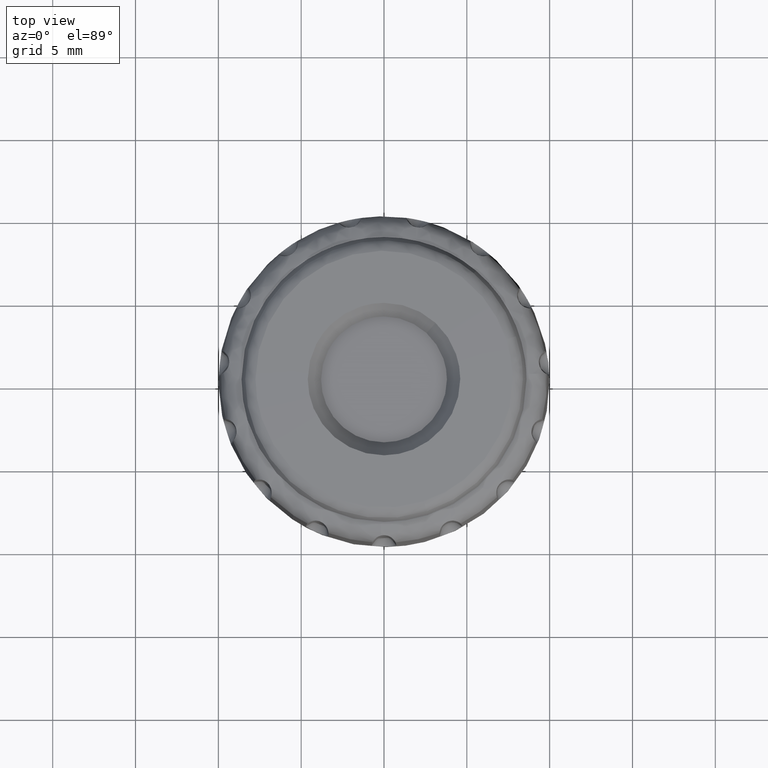
[diagram: clean part render]
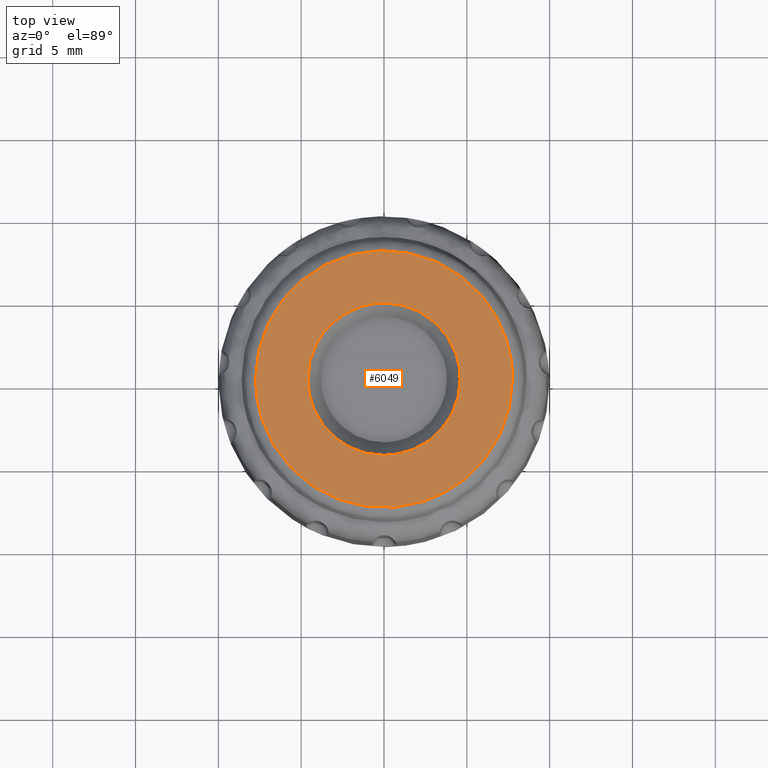
[diagram: same view with one face highlighted and labeled with its STEP entity id]
A machine part, top view. The second image highlights one B-rep face of the part: STEP entity #6049.
In plain terms, the highlighted face is a freeform B-spline surface patch.
Its self-contained STEP definition (entity closure, byte-faithful):
#1010=CARTESIAN_POINT('',(-3.210385367761054,3.298853250387907,13.947016409935310));
#1011=VERTEX_POINT('',#1010);
#1017=CARTESIAN_POINT('',(-4.603152000000000,0.0,13.947016462083660));
#1018=VERTEX_POINT('',#1017);
#1019=CARTESIAN_POINT('',(-4.603152000000000,0.0,13.947016462083660));
#1020=CARTESIAN_POINT('',(-4.603166727809455,0.239445156651411,13.947016458298499));
#1021=CARTESIAN_POINT('',(-4.566451554250141,0.708752306147743,13.947016450879721));
#1022=CARTESIAN_POINT('',(-4.410355716825743,1.372578302354811,13.947016440385870));
#1023=CARTESIAN_POINT('',(-4.150467701999781,2.033767404719485,13.947016429933861));
#1024=CARTESIAN_POINT('',(-3.766114687908772,2.688874956099022,13.947016419577780));
#1025=CARTESIAN_POINT('',(-3.409457181581394,3.105154564600973,13.947016412997399));
#1026=CARTESIAN_POINT('',(-3.210385367761054,3.298853250387907,13.947016409935310));
#1027=B_SPLINE_CURVE_WITH_KNOTS('',3,(#1019,#1020,#1021,#1022,#1023,#1024,#1025,#1026),.UNSPECIFIED.,.F.,.U.,(4,1,1,1,1,4),(5.679009E-009,0.718333817151312,1.407938819376223,2.040068226054926,2.844604052697239,3.677871206022464),.UNSPECIFIED.);
#1028=EDGE_CURVE('',#1018,#1011,#1027,.T.);
#1030=CARTESIAN_POINT('',(-0.000000444124098,-4.603151999999978,13.947016462083660));
#1031=VERTEX_POINT('',#1030);
#1032=CARTESIAN_POINT('',(-0.000000444124098,-4.603151999999978,13.947016462083660));
#1033=CARTESIAN_POINT('',(-0.254202597566716,-4.603173581576821,13.947016462083750));
#1034=CARTESIAN_POINT('',(-0.715522611148789,-4.564835705601952,13.947016462083530));
#1035=CARTESIAN_POINT('',(-1.339830481372016,-4.416575315006530,13.947016462083720));
#1036=CARTESIAN_POINT('',(-1.869616692293019,-4.217786647472836,13.947016462083580));
#1037=CARTESIAN_POINT('',(-2.431396191833623,-3.928530622547151,13.947016462083701));
#1038=CARTESIAN_POINT('',(-2.961134472995838,-3.548092882794495,13.947016462083640));
#1039=CARTESIAN_POINT('',(-3.479519271858484,-3.039161871774113,13.947016462083679));
#1040=CARTESIAN_POINT('',(-3.844141191005947,-2.556864754480110,13.947016462083660));
#1041=CARTESIAN_POINT('',(-4.155430947470489,-2.007347551485315,13.947016462083660));
#1042=CARTESIAN_POINT('',(-4.404732630682498,-1.405548117046053,13.947016462083660));
#1043=CARTESIAN_POINT('',(-4.568558268912137,-0.706113719199211,13.947016462083660));
#1044=CARTESIAN_POINT('',(-4.603159154176039,-0.216540528569821,13.947016462083660));
#1045=CARTESIAN_POINT('',(-4.603152000000000,0.0,13.947016462083660));
#1046=B_SPLINE_CURVE_WITH_KNOTS('',3,(#1032,#1033,#1034,#1035,#1036,#1037,#1038,#1039,#1040,#1041,#1042,#1043,#1044,#1045),.UNSPECIFIED.,.F.,.U.,(4,1,1,1,1,1,1,1,1,1,1,4),(0.000000020274494,0.762603145560284,1.383984655805973,1.920635275513180,2.457287706211696,3.276379536137069,3.869508029962641,4.632113521285097,5.084031152569250,5.761906877036174,6.581002372771326,7.230625345698268),.UNSPECIFIED.);
#1047=EDGE_CURVE('',#1031,#1018,#1046,.T.);
#1049=CARTESIAN_POINT('',(4.603152000000000,0.0,13.947016462083660));
#1050=VERTEX_POINT('',#1049);
#1051=CARTESIAN_POINT('',(4.603152000000000,0.0,13.947016462083660));
#1052=CARTESIAN_POINT('',(4.603157119736666,-0.225953175431454,13.947016462083660));
#1053=CARTESIAN_POINT('',(4.565667148986346,-0.734359596999381,13.947016462083701));
#1054=CARTESIAN_POINT('',(4.402074732746471,-1.404888006374486,13.947016462083591));
#1055=CARTESIAN_POINT('',(4.151283117009728,-2.015564264798307,13.947016462083720));
#1056=CARTESIAN_POINT('',(3.818320184317451,-2.607651494552200,13.947016462083560));
#1057=CARTESIAN_POINT('',(3.398605533307322,-3.132038634035441,13.947016462083671));
#1058=CARTESIAN_POINT('',(2.849737509335953,-3.635666320286818,13.947016462083660));
#1059=CARTESIAN_POINT('',(2.310817859570403,-4.002982295608224,13.947016462083800));
#1060=CARTESIAN_POINT('',(1.662500989240533,-4.309603846645066,13.947016462083459));
#1061=CARTESIAN_POINT('',(0.913214579237452,-4.539416777915159,13.947016462083830));
#1062=CARTESIAN_POINT('',(0.338938778279637,-4.603219268513516,13.947016462083599));
#1063=CARTESIAN_POINT('',(-0.000000444124098,-4.603151999999978,13.947016462083660));
#1064=B_SPLINE_CURVE_WITH_KNOTS('',3,(#1051,#1052,#1053,#1054,#1055,#1056,#1057,#1058,#1059,#1060,#1061,#1062,#1063),.UNSPECIFIED.,.F.,.U.,(4,1,1,1,1,1,1,1,1,1,4),(0.000000020237305,0.677863007119265,1.525209810827942,2.061859842167809,2.655001844535780,3.558830407012365,4.067221829659106,4.886317322352795,5.507703834879182,6.213824938602644,7.230625846330430),.UNSPECIFIED.);
#1065=EDGE_CURVE('',#1050,#1031,#1064,.T.);
#1067=CARTESIAN_POINT('',(3.109844514676768,3.393799755870400,13.947016514052761));
#1068=VERTEX_POINT('',#1067);
#1069=CARTESIAN_POINT('',(3.109844514676768,3.393799755870400,13.947016514052761));
#1070=CARTESIAN_POINT('',(3.351678725811655,3.172278841901365,13.947016510660610));
#1071=CARTESIAN_POINT('',(3.708360778121454,2.767227308837852,13.947016504458100));
#1072=CARTESIAN_POINT('',(4.066002331734420,2.180303553571531,13.947016495470541));
#1073=CARTESIAN_POINT('',(4.294468033118210,1.683050270539807,13.947016487856150));
#1074=CARTESIAN_POINT('',(4.526725302541314,0.983804507698640,13.947016477148649));
#1075=CARTESIAN_POINT('',(4.603264111449051,0.397530626268746,13.947016468170821));
#1076=CARTESIAN_POINT('',(4.603152000000000,0.0,13.947016462083660));
#1077=B_SPLINE_CURVE_WITH_KNOTS('',3,(#1069,#1070,#1071,#1072,#1073,#1074,#1075,#1076),.UNSPECIFIED.,.F.,.U.,(4,1,1,1,1,4),(6.017901E-009,0.983855057439438,1.609944955896518,2.057150686863086,2.623611570716068,3.816164253565766),.UNSPECIFIED.);
#1078=EDGE_CURVE('',#1068,#1050,#1077,.T.);
#1174=CARTESIAN_POINT('',(0.000000444124103,4.603151999999978,13.947016462083660));
#1175=VERTEX_POINT('',#1174);
#1176=CARTESIAN_POINT('',(0.000000444124103,4.603151999999978,13.947016462083660));
#1177=CARTESIAN_POINT('',(0.248972569295512,4.603172315269449,13.947016466244261));
#1178=CARTESIAN_POINT('',(0.666880807930617,4.569156694573265,13.947016473228050));
#1179=CARTESIAN_POINT('',(1.258196786740959,4.438591722899154,13.947016483109531));
#1180=CARTESIAN_POINT('',(1.864328027195016,4.228828766095694,13.947016493238820));
#1181=CARTESIAN_POINT('',(2.503637962586944,3.890459371437080,13.947016503922310));
#1182=CARTESIAN_POINT('',(2.926292682320682,3.562011072953989,13.947016510985399));
#1183=CARTESIAN_POINT('',(3.109844514676768,3.393799755870400,13.947016514052761));
#1184=B_SPLINE_CURVE_WITH_KNOTS('',3,(#1176,#1177,#1178,#1179,#1180,#1181,#1182,#1183),.UNSPECIFIED.,.F.,.U.,(4,1,1,1,1,4),(4.437316E-009,0.746912995496290,1.253747989804849,1.813929927060794,2.667548127734376,3.414461118794278),.UNSPECIFIED.);
#1185=EDGE_CURVE('',#1175,#1068,#1184,.T.);
#1187=CARTESIAN_POINT('',(-3.210385367761054,3.298853250387907,13.947016409935310));
#1188=CARTESIAN_POINT('',(-3.064519262882040,3.440812808254905,13.947016412304709));
#1189=CARTESIAN_POINT('',(-2.704513095255479,3.747444370710627,13.947016418152520));
#1190=CARTESIAN_POINT('',(-2.135047042238195,4.097940770660123,13.947016427402721));
#1191=CARTESIAN_POINT('',(-1.537573917324500,4.351213400667145,13.947016437107830));
#1192=CARTESIAN_POINT('',(-0.851158688874865,4.546658517341338,13.947016448257759));
#1193=CARTESIAN_POINT('',(-0.333076286888993,4.603214509191297,13.947016456673230));
#1194=CARTESIAN_POINT('',(0.000000444124103,4.603151999999978,13.947016462083660));
#1195=B_SPLINE_CURVE_WITH_KNOTS('',3,(#1187,#1188,#1189,#1190,#1191,#1192,#1193,#1194),.UNSPECIFIED.,.F.,.U.,(4,1,1,1,1,4),(5.085719E-009,0.610629359776327,1.415552500311138,1.998419737154784,2.553541762203576,3.552754728453798),.UNSPECIFIED.);
#1196=EDGE_CURVE('',#1011,#1175,#1195,.T.);
#3443=CARTESIAN_POINT('',(2.396359510683250,-7.375236211573055,13.849597830774400));
#3444=VERTEX_POINT('',#3443);
#3456=CARTESIAN_POINT('',(-7.754782240562751,0.0,13.849597831981299));
#3457=VERTEX_POINT('',#3456);
#3458=CARTESIAN_POINT('',(2.396359510683250,-7.375236211573055,13.849597830774400));
#3459=CARTESIAN_POINT('',(1.943836306092066,-7.522326076957984,13.849597830873099));
#3460=CARTESIAN_POINT('',(1.160763701328386,-7.699090299841733,13.849597831036620));
#3461=CARTESIAN_POINT('',(0.133306011114217,-7.768529684173184,13.849597831235821));
#3462=CARTESIAN_POINT('',(-0.704325518175037,-7.735618226231230,13.849597831389760));
#3463=CARTESIAN_POINT('',(-1.535011161841607,-7.619683510828196,13.849597831534529));
#3464=CARTESIAN_POINT('',(-2.549588780271728,-7.353635523636700,13.849597831699660));
#3465=CARTESIAN_POINT('',(-3.462999123017084,-6.963413063965188,13.849597831834050));
#3466=CARTESIAN_POINT('',(-4.267208487202566,-6.489360511922109,13.849597831940070));
#3467=CARTESIAN_POINT('',(-4.945631792291952,-5.996478202576391,13.849597832020770));
#3468=CARTESIAN_POINT('',(-5.589951846819381,-5.400869471411132,13.849597832085241));
#3469=CARTESIAN_POINT('',(-6.208831348753225,-4.676261732193892,13.849597832133121));
#3470=CARTESIAN_POINT('',(-6.696311991008103,-3.946688762581557,13.849597832155110));
#3471=CARTESIAN_POINT('',(-7.163555114844384,-3.029707298468995,13.849597832156590));
#3472=CARTESIAN_POINT('',(-7.480796722871202,-2.129175443322603,13.849597832130909));
#3473=CARTESIAN_POINT('',(-7.703155348230171,-1.065842757252812,13.849597832072270));
#3474=CARTESIAN_POINT('',(-7.754809551931253,-0.399694048500855,13.849597832019031));
#3475=CARTESIAN_POINT('',(-7.754782240562751,0.0,13.849597831981299));
#3476=B_SPLINE_CURVE_WITH_KNOTS('',3,(#3458,#3459,#3460,#3461,#3462,#3463,#3464,#3465,#3466,#3467,#3468,#3469,#3470,#3471,#3472,#3473,#3474,#3475),.UNSPECIFIED.,.F.,.U.,(4,1,1,1,1,1,1,1,1,1,1,1,1,1,1,4),(0.000000012705033,1.427477347091116,2.398170500541786,3.083367242094488,3.939861561820152,4.910556470004606,6.223844008090383,6.909043575691629,7.708410447495186,8.736204223587841,9.535597656319936,10.563393764244280,11.362786013465010,12.618973437305980,13.418373250395840,14.617453181398290),.UNSPECIFIED.);
#3477=EDGE_CURVE('',#3444,#3457,#3476,.T.);
#3479=CARTESIAN_POINT('',(7.375236206335931,2.396359508729125,13.849597830991099));
#3480=VERTEX_POINT('',#3479);
#3481=CARTESIAN_POINT('',(-7.754782240562751,0.0,13.849597831981299));
#3482=CARTESIAN_POINT('',(-7.754788769488837,0.299768890629783,13.849597832000381));
#3483=CARTESIAN_POINT('',(-7.716668641293842,0.956407040254186,13.849597832039169));
#3484=CARTESIAN_POINT('',(-7.550856175334747,1.842477838378515,13.849597832083161));
#3485=CARTESIAN_POINT('',(-7.271251933157443,2.743262848363950,13.849597832118871));
#3486=CARTESIAN_POINT('',(-6.937330506236038,3.502867875438908,13.849597832142500));
#3487=CARTESIAN_POINT('',(-6.441079625953957,4.354949578983443,13.849597832158780));
#3488=CARTESIAN_POINT('',(-5.867982799944887,5.106282281542965,13.849597832163520));
#3489=CARTESIAN_POINT('',(-5.138869150237608,5.833132203581564,13.849597832154490));
#3490=CARTESIAN_POINT('',(-4.349352241494106,6.448904487998877,13.849597832134330));
#3491=CARTESIAN_POINT('',(-3.446390592680822,6.974427677339782,13.849597832099141));
#3492=CARTESIAN_POINT('',(-2.533015368464956,7.348809065280794,13.849597832054350));
#3493=CARTESIAN_POINT('',(-1.568735692067749,7.615984698510808,13.849597831998100));
#3494=CARTESIAN_POINT('',(-0.647840529890849,7.748842972037976,13.849597831937579));
#3495=CARTESIAN_POINT('',(0.395520485978719,7.765804044402158,13.849597831859370));
#3496=CARTESIAN_POINT('',(1.277585311588116,7.667718511852957,13.849597831786580));
#3497=CARTESIAN_POINT('',(2.154182240087069,7.462930175042754,13.849597831707641));
#3498=CARTESIAN_POINT('',(2.898354525006386,7.208961207574085,13.849597831634631));
#3499=CARTESIAN_POINT('',(3.792178998954449,6.791932506587036,13.849597831541340));
#3500=CARTESIAN_POINT('',(4.659409356812392,6.233784698479254,13.849597831440040));
#3501=CARTESIAN_POINT('',(5.424086630231938,5.565474299531679,13.849597831339880));
#3502=CARTESIAN_POINT('',(6.136793708266869,4.784025105466252,13.849597831236540));
#3503=CARTESIAN_POINT('',(6.831377340605168,3.765600247781952,13.849597831118819));
#3504=CARTESIAN_POINT('',(7.220895064801534,2.871544525788539,13.849597831033391));
#3505=CARTESIAN_POINT('',(7.375236206335931,2.396359508729125,13.849597830991099));
#3506=B_SPLINE_CURVE_WITH_KNOTS('',3,(#3481,#3482,#3483,#3484,#3485,#3486,#3487,#3488,#3489,#3490,#3491,#3492,#3493,#3494,#3495,#3496,#3497,#3498,#3499,#3500,#3501,#3502,#3503,#3504,#3505),.UNSPECIFIED.,.F.,.U.,(4,1,1,1,1,1,1,1,1,1,1,1,1,1,1,1,1,1,1,1,1,1,4),(0.000000040846157,0.899308017101120,1.969915086405344,2.697933684561804,3.725732323281932,4.453750069207459,5.652838555036055,6.552157866736648,7.537125031952897,8.650558840035636,9.678360870108270,10.492010444428660,11.648253423275440,12.461920704169669,13.618187203362281,14.303391747699241,15.159881442062780,15.973547930362230,17.258288496551788,18.243256317715161,19.014101609722321,20.427300886962779,21.926158098392300),.UNSPECIFIED.);
#3507=EDGE_CURVE('',#3457,#3480,#3506,.T.);
#3546=CARTESIAN_POINT('',(7.754782240562751,0.0,13.849597831981299));
#3547=VERTEX_POINT('',#3546);
#3548=CARTESIAN_POINT('',(7.375236206335931,2.396359508729125,13.849597830991099));
#3549=CARTESIAN_POINT('',(7.536082232022776,1.901602495313721,13.849597831410700));
#3550=CARTESIAN_POINT('',(7.708898742806669,1.103921665465340,13.849597831861670));
#3551=CARTESIAN_POINT('',(7.754786642337192,0.291840922560342,13.849597831981249));
#3552=CARTESIAN_POINT('',(7.754782240562751,0.0,13.849597831981299));
#3553=B_SPLINE_CURVE_WITH_KNOTS('',3,(#3548,#3549,#3550,#3551,#3552),.UNSPECIFIED.,.F.,.U.,(4,1,4),(6.367218E-010,1.560714694848580,2.436239141190702),.UNSPECIFIED.);
#3554=EDGE_CURVE('',#3480,#3547,#3553,.T.);
#3556=CARTESIAN_POINT('',(7.754782240562751,0.0,13.849597831981299));
#3557=CARTESIAN_POINT('',(7.754803839909182,-0.406037322914023,13.849597831981299));
#3558=CARTESIAN_POINT('',(7.683890409849779,-1.306939807266078,13.849597831965330));
#3559=CARTESIAN_POINT('',(7.381046029276508,-2.479410030777430,13.849597831897089));
#3560=CARTESIAN_POINT('',(6.922648471560546,-3.541396021823138,13.849597831793959));
#3561=CARTESIAN_POINT('',(6.475189359748932,-4.296339389520915,13.849597831693050));
#3562=CARTESIAN_POINT('',(5.917451932636096,-5.036889890305819,13.849597831567600));
#3563=CARTESIAN_POINT('',(5.315453816552044,-5.675450679366777,13.849597831431669));
#3564=CARTESIAN_POINT('',(4.588350552823902,-6.272146986541815,13.849597831267420));
#3565=CARTESIAN_POINT('',(3.649534672067614,-6.879677637272829,13.849597831057260));
#3566=CARTESIAN_POINT('',(2.903232624799670,-7.210623918011209,13.849597830888721));
#3567=CARTESIAN_POINT('',(2.396359510683250,-7.375236211573055,13.849597830774400));
#3568=B_SPLINE_CURVE_WITH_KNOTS('',3,(#3556,#3557,#3558,#3559,#3560,#3561,#3562,#3563,#3564,#3565,#3566,#3567),.UNSPECIFIED.,.F.,.U.,(4,1,1,1,1,1,1,1,1,4),(0.000000010649920,1.218114100683366,2.702703122312627,3.616296363812433,4.682149364359002,5.329272332317692,6.395124859395766,7.308717423776979,8.146178214646005,9.744956561699132),.UNSPECIFIED.);
#3569=EDGE_CURVE('',#3547,#3444,#3568,.T.);
#6011=CARTESIAN_POINT('',(-8.524935250966681,-8.524744376913704,13.636300845273782));
#6012=CARTESIAN_POINT('',(-4.264406348799597,-8.528621736729841,13.818069785310419));
#6013=CARTESIAN_POINT('',(4.264404904437376,-8.528621736729841,13.818069785310419));
#6014=CARTESIAN_POINT('',(8.524932366180947,-8.524744379539051,13.636300968348728));
#6015=CARTESIAN_POINT('',(-8.528812523889418,-4.264310781511983,13.818061642054316));
#6016=CARTESIAN_POINT('',(-4.266346749586361,-4.266251225705943,13.999995999999950));
#6017=CARTESIAN_POINT('',(4.266345304566922,-4.266251225705943,13.999995999999950));
#6018=CARTESIAN_POINT('',(8.528809637792831,-4.264310782825850,13.818061765241241));
#6019=CARTESIAN_POINT('',(-8.528812523889418,4.262397816975033,13.818061642054316));
#6020=CARTESIAN_POINT('',(-4.266346749586361,4.264337390688130,13.999995999999950));
#6021=CARTESIAN_POINT('',(4.266345304566922,4.264337390688130,13.999995999999950));
#6022=CARTESIAN_POINT('',(8.528809637792831,4.262397818288309,13.818061765241241));
#6023=CARTESIAN_POINT('',(-8.524938727286420,8.520923661823172,13.636463809980489));
#6024=CARTESIAN_POINT('',(-4.264408088540979,8.524799285422029,13.818232898295269));
#6025=CARTESIAN_POINT('',(4.264406644178167,8.524799285422029,13.818232898295269));
#6026=CARTESIAN_POINT('',(8.524935842499509,8.520923664447341,13.636463933055538));
#6034=(BOUNDED_SURFACE()B_SPLINE_SURFACE(2,2,((#6011,#6015,#6019,#6023),(#6012,#6016,#6020,#6024),(#6013,#6017,#6021,#6025),(#6014,#6018,#6022,#6026)),.UNSPECIFIED.,.F.,.F.,.U.)B_SPLINE_SURFACE_WITH_KNOTS((3,1,3),(3,1,3),(79.265294132614130,87.588269689532808,95.911242427444463),(79.265480484771729,87.588269689532808,95.907325301361084),.UNSPECIFIED.)GEOMETRIC_REPRESENTATION_ITEM()RATIONAL_B_SPLINE_SURFACE(((1.000910065352714,1.000455042864693,1.000455042864693,1.000909657199233),(1.000455022488021,1.0,1.0,1.000454614334541),(1.000455022488021,1.0,1.0,1.000454614334541),(1.000910065044466,1.000455042556445,1.000455042556445,1.000909656890985)))REPRESENTATION_ITEM('')SURFACE());
#6035=ORIENTED_EDGE('',*,*,#3477,.F.);
#6036=ORIENTED_EDGE('',*,*,#3569,.F.);
#6037=ORIENTED_EDGE('',*,*,#3554,.F.);
#6038=ORIENTED_EDGE('',*,*,#3507,.F.);
#6039=EDGE_LOOP('',(#6035,#6036,#6037,#6038));
#6040=FACE_OUTER_BOUND('',#6039,.T.);
#6041=ORIENTED_EDGE('',*,*,#1065,.T.);
#6042=ORIENTED_EDGE('',*,*,#1047,.T.);
#6043=ORIENTED_EDGE('',*,*,#1028,.T.);
#6044=ORIENTED_EDGE('',*,*,#1196,.T.);
#6045=ORIENTED_EDGE('',*,*,#1185,.T.);
#6046=ORIENTED_EDGE('',*,*,#1078,.T.);
#6047=EDGE_LOOP('',(#6041,#6042,#6043,#6044,#6045,#6046));
#6048=FACE_BOUND('',#6047,.T.);
#6049=ADVANCED_FACE('',(#6040,#6048),#6034,.T.);